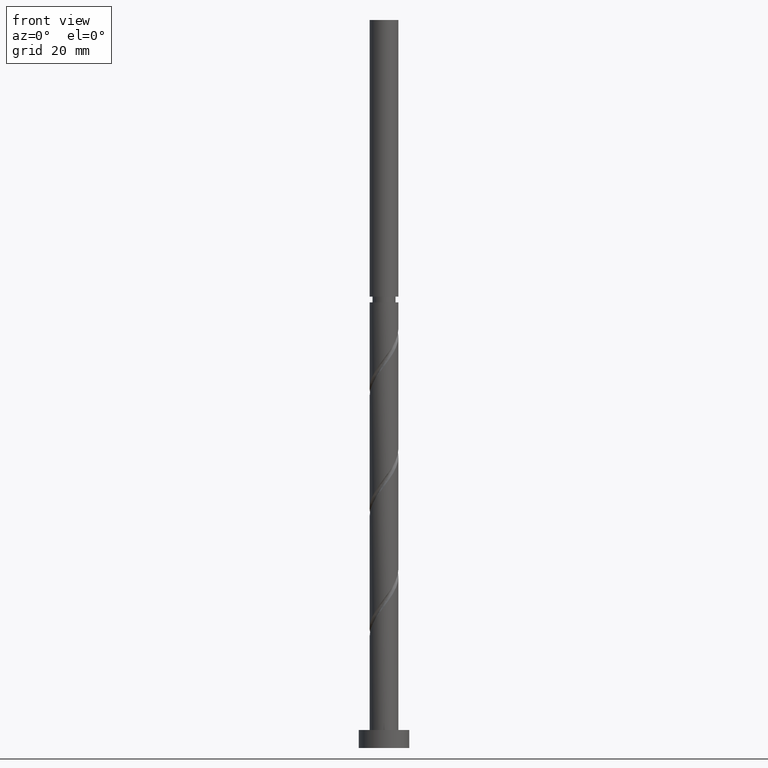
[diagram: clean part render]
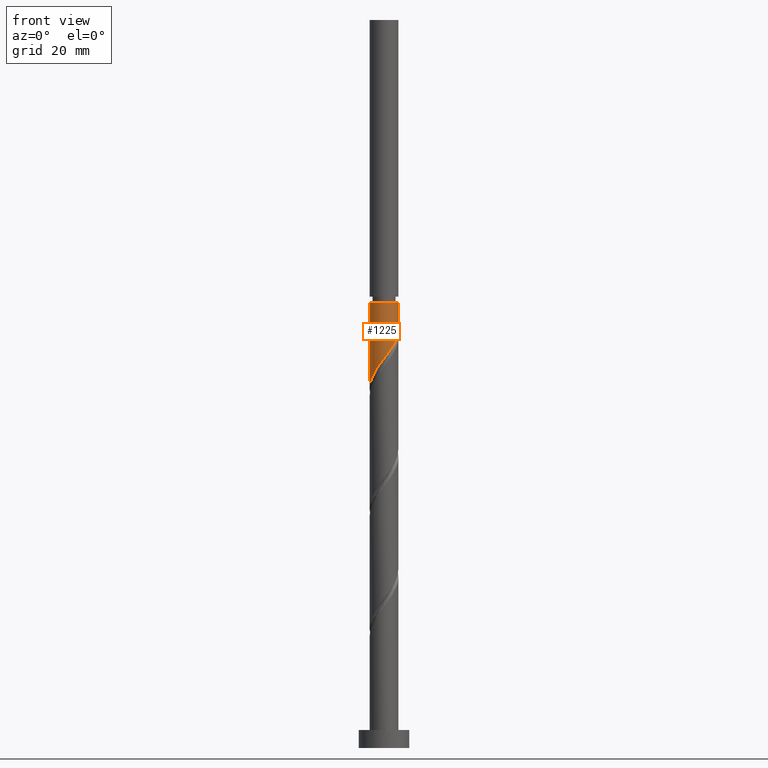
[diagram: same view with one face highlighted and labeled with its STEP entity id]
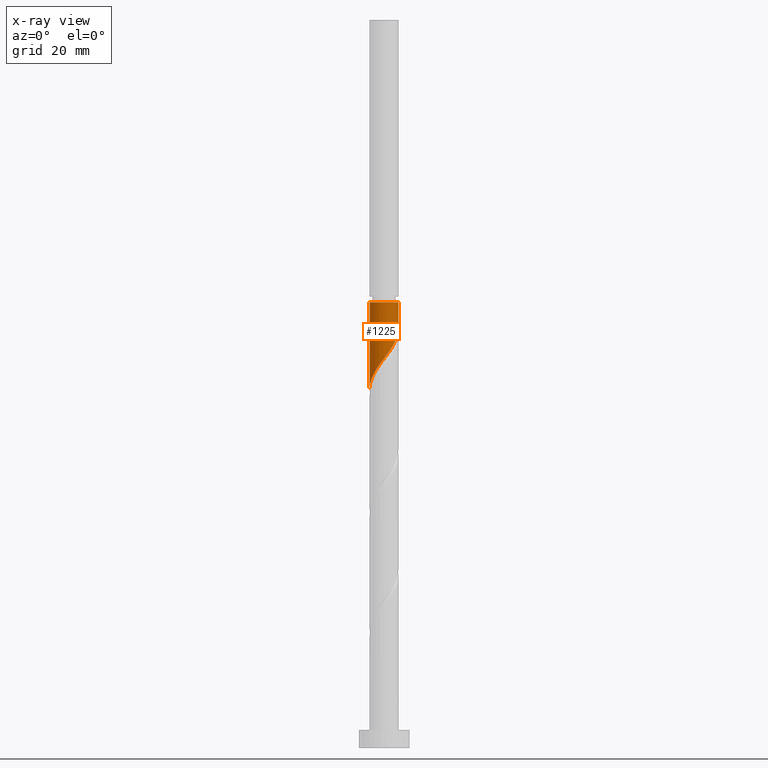
[diagram: x-ray of the same camera — body ghosted, the highlighted face saturated]
A machine part, front view. The second image highlights one B-rep face of the part: STEP entity #1225.
The next image is the same camera in x-ray: the body ghosted, the highlighted face saturated — about 0% of this face is hidden behind the body in this view.
In plain terms, the highlighted cylindrical surface (edge-blend (fillet) strip) has radius 4 mm, axis along (-0, -0, -1).
Its self-contained STEP definition (entity closure, byte-faithful):
#28 = CARTESIAN_POINT ( 'NONE',  ( -4.000000000000001776, 1.585101151023748431E-15, 99.72543805488550106 ) ) ;
#47 = CARTESIAN_POINT ( 'NONE',  ( -2.649347517584564216, -2.996824607992351286, 104.2174269552309624 ) ) ;
#53 = ORIENTED_EDGE ( 'NONE', *, *, #79, .T. ) ;
#61 = CARTESIAN_POINT ( 'NONE',  ( 3.815205935069465593, -1.312067740227890855, 114.6340936218976765 ) ) ;
#78 = DIRECTION ( 'NONE',  ( -0.000000000000000000, -0.000000000000000000, -1.000000000000000000 ) ) ;
#79 = EDGE_CURVE ( 'NONE', #1086, #858, #916, .T. ) ;
#101 = FACE_OUTER_BOUND ( 'NONE', #1138, .T. ) ;
#147 = DIRECTION ( 'NONE',  ( -0.000000000000000000, -0.000000000000000000, -1.000000000000000000 ) ) ;
#166 = CARTESIAN_POINT ( 'NONE',  ( -3.960099130553266011, -0.7713189730113401144, 100.7452047330087765 ) ) ;
#175 = CARTESIAN_POINT ( 'NONE',  ( -4.000000000000000888, -0.1229678066306986173, 99.88860174291363592 ) ) ;
#185 = VECTOR ( 'NONE', #147, 1000.000000000000000 ) ;
#194 = CARTESIAN_POINT ( 'NONE',  ( 3.580411880364395394, -1.783437906669447459, 113.9396491774532052 ) ) ;
#213 = AXIS2_PLACEMENT_3D ( 'NONE', #1638, #1068, #1239 ) ;
#304 = AXIS2_PLACEMENT_3D ( 'NONE', #1181, #78, #915 ) ;
#306 = CARTESIAN_POINT ( 'NONE',  ( -3.992446597741900582, -0.2457034069343181637, 100.0507602885643195 ) ) ;
#339 = CARTESIAN_POINT ( 'NONE',  ( 3.920000000000000817, -0.7959899496852961276, 115.3285380663420767 ) ) ;
#371 = LINE ( 'NONE', #1164, #1346 ) ;
#420 = CARTESIAN_POINT ( 'NONE',  ( -4.000000000000000000, 0.000000000000000000, 202.0000000000000000 ) ) ;
#448 = CARTESIAN_POINT ( 'NONE',  ( -1.783437906669445239, -3.580411880364395838, 105.6063158441198624 ) ) ;
#456 = CARTESIAN_POINT ( 'NONE',  ( 2.648031390325376933, -3.043886962058127033, 111.8563158441199050 ) ) ;
#472 = CARTESIAN_POINT ( 'NONE',  ( 4.000000000000002665, -0.4020151261036864487, 115.8586783523629151 ) ) ;
#502 = DIRECTION ( 'NONE',  ( -0.000000000000000000, -0.000000000000000000, -1.000000000000000000 ) ) ;
#516 = EDGE_CURVE ( 'NONE', #858, #1550, #825, .T. ) ;
#545 = CARTESIAN_POINT ( 'NONE',  ( 4.000000000000001776, 2.915987966505951491E-15, 116.3921047215521440 ) ) ;
#551 = ORIENTED_EDGE ( 'NONE', *, *, #516, .T. ) ;
#587 = CARTESIAN_POINT ( 'NONE',  ( -2.254808073111002731, -3.345617825659328748, 104.9118713996754195 ) ) ;
#598 = CARTESIAN_POINT ( 'NONE',  ( -0.2799121591427050082, -4.024794064930537374, 107.6896491774532336 ) ) ;
#659 = CYLINDRICAL_SURFACE ( 'NONE', #304, 4.000000000000000000 ) ;
#678 = CARTESIAN_POINT ( 'NONE',  ( 4.000000000000001776, 2.915987966505951886E-15, 116.3921047215521440 ) ) ;
#706 = CARTESIAN_POINT ( 'NONE',  ( 0.7713189730113390041, -3.960099130553266011, 109.0785380663421051 ) ) ;
#715 = CARTESIAN_POINT ( 'NONE',  ( 1.270652482415436157, -3.792814557677648413, 109.7729825107865196 ) ) ;
#734 = CARTESIAN_POINT ( 'NONE',  ( -3.625529984802032590, -1.769985991819532645, 102.1340936218976481 ) ) ;
#738 = VERTEX_POINT ( 'NONE', #678 ) ;
#750 = ORIENTED_EDGE ( 'NONE', *, *, #1074, .F. ) ;
#825 = LINE ( 'NONE', #420, #185 ) ;
#848 = CARTESIAN_POINT ( 'NONE',  ( -1.312067740227888635, -3.815205935069466037, 106.3007602885643337 ) ) ;
#858 = VERTEX_POINT ( 'NONE', #1106 ) ;
#915 = DIRECTION ( 'NONE',  ( -1.000000000000000000, 0.000000000000000000, 0.000000000000000000 ) ) ;
#916 = CIRCLE ( 'NONE', #213, 3.999999999999996447 ) ;
#983 = CARTESIAN_POINT ( 'NONE',  ( -4.000000000000001776, 1.585101151023748431E-15, 99.72543805488550106 ) ) ;
#990 = CARTESIAN_POINT ( 'NONE',  ( 0.2457034069343168592, -3.992446597741900582, 108.3840936218976481 ) ) ;
#996 = CARTESIAN_POINT ( 'NONE',  ( 2.209008691072452901, -3.334708473430079589, 111.1618713996754053 ) ) ;
#1068 = DIRECTION ( 'NONE',  ( -0.000000000000000000, -0.000000000000000000, -1.000000000000000000 ) ) ;
#1074 = EDGE_CURVE ( 'NONE', #1086, #738, #371, .T. ) ;
#1086 = VERTEX_POINT ( 'NONE', #1588 ) ;
#1106 = CARTESIAN_POINT ( 'NONE',  ( -3.999999999999996447, 0.000000000000000000, 123.6618713996754053 ) ) ;
#1119 = CARTESIAN_POINT ( 'NONE',  ( -0.7959899496852960166, -3.920000000000000817, 106.9952047330087623 ) ) ;
#1138 = EDGE_LOOP ( 'NONE', ( #750, #53, #551, #1378 ) ) ;
#1164 = CARTESIAN_POINT ( 'NONE',  ( 4.000000000000000000, 4.898587196589412829E-16, 202.0000000000000000 ) ) ;
#1181 = CARTESIAN_POINT ( 'NONE',  ( 0.000000000000000000, 0.000000000000000000, 202.0000000000000000 ) ) ;
#1225 = ADVANCED_FACE ( 'NONE', ( #101 ), #659, .T. ) ;
#1236 = CARTESIAN_POINT ( 'NONE',  ( -3.792814557677647525, -1.270652482415436602, 101.4396491774531910 ) ) ;
#1239 = DIRECTION ( 'NONE',  ( -1.000000000000000000, 0.000000000000000000, 0.000000000000000000 ) ) ;
#1263 = CARTESIAN_POINT ( 'NONE',  ( 1.769985991819532645, -3.625529984802032590, 110.4674269552310193 ) ) ;
#1346 = VECTOR ( 'NONE', #502, 1000.000000000000000 ) ;
#1378 = ORIENTED_EDGE ( 'NONE', *, *, #1513, .F. ) ;
#1505 = CARTESIAN_POINT ( 'NONE',  ( -3.043886962058127033, -2.648031390325377377, 103.5229825107865622 ) ) ;
#1513 = EDGE_CURVE ( 'NONE', #738, #1550, #1623, .T. ) ;
#1521 = CARTESIAN_POINT ( 'NONE',  ( 3.345617825659326972, -2.254808073111004951, 113.2452047330087623 ) ) ;
#1528 = CARTESIAN_POINT ( 'NONE',  ( -3.334708473430078257, -2.209008691072454678, 102.8285380663420483 ) ) ;
#1550 = VERTEX_POINT ( 'NONE', #28 ) ;
#1588 = CARTESIAN_POINT ( 'NONE',  ( 3.999999999999996447, 4.898587196589410857E-16, 123.6618713996754053 ) ) ;
#1623 =( BOUNDED_CURVE ( )  B_SPLINE_CURVE ( 2, ( #545, #472, #339, #61, #194, #1521, #1678, #456, #996, #1263, #715, #706, #990, #598, #1119, #848, #448, #587, #47, #1505, #1528, #734, #1236, #166, #306, #175, #983 ),
 .UNSPECIFIED., .F., .T. ) 
 B_SPLINE_CURVE_WITH_KNOTS ( ( 3, 2, 2, 2, 2, 2, 2, 2, 2, 2, 2, 2, 2, 3 ),
 ( 0.3045317669814462946, 0.3125000000000000000, 0.3229166666666666852, 0.3333333333333333148, 0.3437500000000000000, 0.3541666666666666852, 0.3645833333333333148, 0.3750000000000000000, 0.3854166666666666852, 0.3958333333333333148, 0.4062500000000000000, 0.4166666666666666852, 0.4270833333333333148, 0.4295317669814461836 ),
 .UNSPECIFIED. ) 
 CURVE ( )  GEOMETRIC_REPRESENTATION_ITEM ( )  RATIONAL_B_SPLINE_CURVE ( ( 0.9062941362546335089, 0.9031415850403378132, 0.9090909090909131685, 0.9013135103398315362, 0.9090909090909131685, 0.9013135103398315362, 0.9090909090909131685, 0.9013135103398315362, 0.9090909090909131685, 0.9013135103398315362, 0.9090909090909131685, 0.9013135103398315362, 0.9090909090909131685, 0.9013135103398315362, 0.9090909090909131685, 0.9013135103398315362, 0.9090909090909131685, 0.9013135103398315362, 0.9090909090909131685, 0.9013135103398315362, 0.9090909090909131685, 0.9013135103398315362, 0.9090909090909131685, 0.9013135103398315362, 0.9090909090909131685, 0.9072628343904070025, 0.9062941362546337309 ) ) 
 REPRESENTATION_ITEM ( '' )  );
#1638 = CARTESIAN_POINT ( 'NONE',  ( 0.000000000000000000, 0.000000000000000000, 123.6618713996754053 ) ) ;
#1678 = CARTESIAN_POINT ( 'NONE',  ( 2.996824607992351286, -2.649347517584564660, 112.5507602885642768 ) ) ;